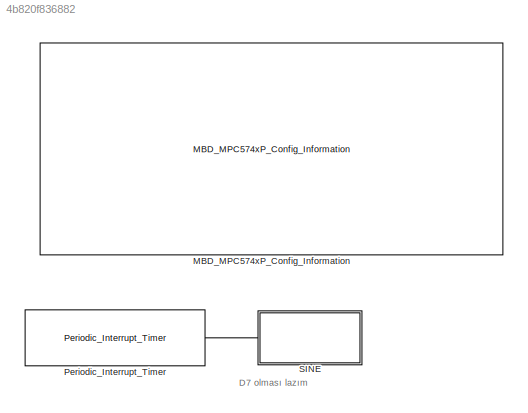
MODEL slx_4b820f836882
KIND model
CONFIG AbsTol = auto
CONFIG EnableMultiTasking = off
CONFIG FixedStep = auto
CONFIG InitFcn = mbd_pnt_consistency_checks(bdroot(gcs));
CONFIG MaxStep = auto
CONFIG MinStep = auto
CONFIG RelTol = 1e-3
CONFIG SampleTimeConstraint = Unconstrained
CONFIG Solver = FixedStepDiscrete
CONFIG SolverName = FixedStepDiscrete
CONFIG StartTime = 0.0
CONFIG StopTime = 10.0
BLOCK [Reference] MBD_MPC574xP_Config_Information  REF=mbd_pnt_ec_toolbox/MPC574xP/MBD_MPC574xP_Config_Information
  Ports = []
  SourceBlock = mbd_pnt_ec_toolbox/MPC574xP/MBD_MPC574xP_Config_Information
  SourceProductName = Model Based Design Toolbox for MPC574xP
  SourceType = MBDTBX_EC_PNT
BLOCK [Reference] Periodic_Interrupt_Timer  REF=mbd_pnt_ec_toolbox/MPC574xP/Utility Blocks/Periodic_Interrupt_Timer
  Ports = [0, 1]
  SourceBlock = mbd_pnt_ec_toolbox/MPC574xP/Utility Blocks/Periodic_Interrupt_Timer
  SourceProductName = Model Based Design Toolbox for MPC574xP
  SourceType = timer_pnt_pit_block
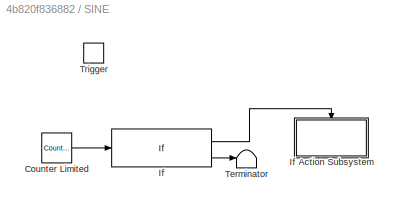
BLOCK [SubSystem] SINE
  Ports = [0, 0, 0, 1]
  RequestExecContextInheritance = off
BLOCK [Reference] SINE/Counter Limited  REF=simulink/Sources/Counter
Limited
  Ports = [0, 1]
  SourceBlock = simulink/Sources/Counter\nLimited
  SourceProductBaseCode = SL
  SourceProductName = Simulink
  SourceType = Counter Limited
BLOCK [If] SINE/If
  IfExpression = u1 < 18
  Ports = [1, 2]
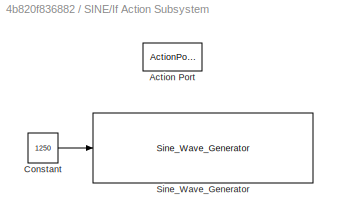
BLOCK [SubSystem] SINE/If Action Subsystem
  Ports = [0, 0, 0, 0, 0, 0, 0, 1]
  RequestExecContextInheritance = off
  TreatAsAtomicUnit = on
BLOCK [ActionPort] SINE/If Action Subsystem/Action Port
  ActionType = then
BLOCK [Constant] SINE/If Action Subsystem/Constant
  OutDataTypeStr = uint16
  Value = 1250
BLOCK [Reference] SINE/If Action Subsystem/Sine_Wave_Generator  REF=mbd_pnt_ec_toolbox/MPC574xP/Motor Control Blocks/Sine_Wave_Generator
  Ports = [1]
  SourceBlock = mbd_pnt_ec_toolbox/MPC574xP/Motor Control Blocks/Sine_Wave_Generator
  SourceProductName = Model Based Design Toolbox for MPC574xP
  SourceType = sineWave_pnt
BLOCK [Terminator] SINE/Terminator
BLOCK [TriggerPort] SINE/Trigger
  PortDimensions = 1
  Ports = []
  StatesWhenEnabling = held
  TriggerType = function-call
  VariantControl = Variant
ANNOTATION (root): D7 olması lazım
LINE Periodic_Interrupt_Timer:1 -> SINE:trigger
LINE SINE/Counter Limited:1 -> SINE/If:1
LINE SINE/If Action Subsystem/Constant:1 -> SINE/If Action Subsystem/Sine_Wave_Generator:1
LINE SINE/If:1 -> SINE/If Action Subsystem:ifaction
LINE SINE/If:2 -> SINE/Terminator:1
